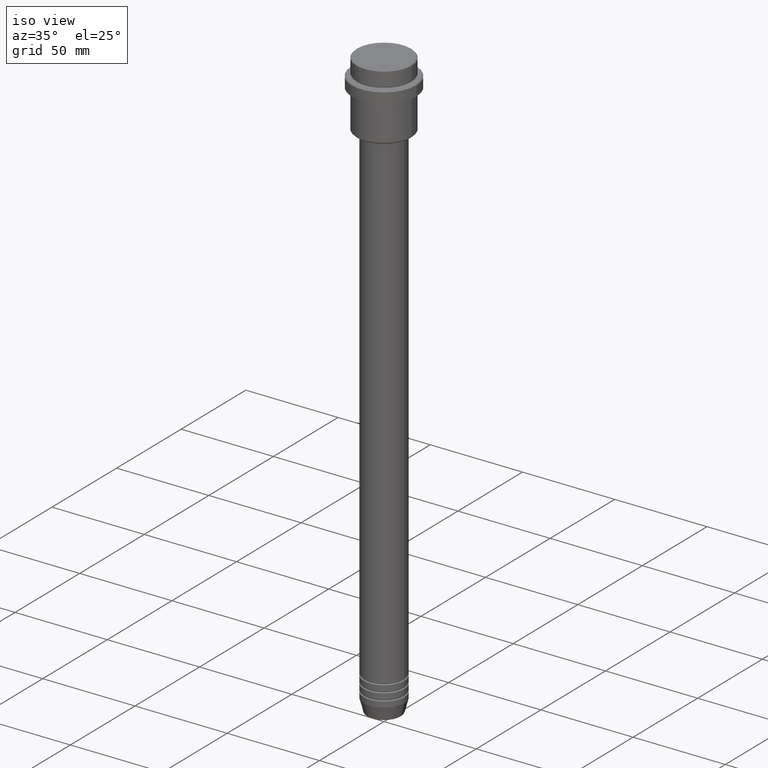
[diagram: clean part render]
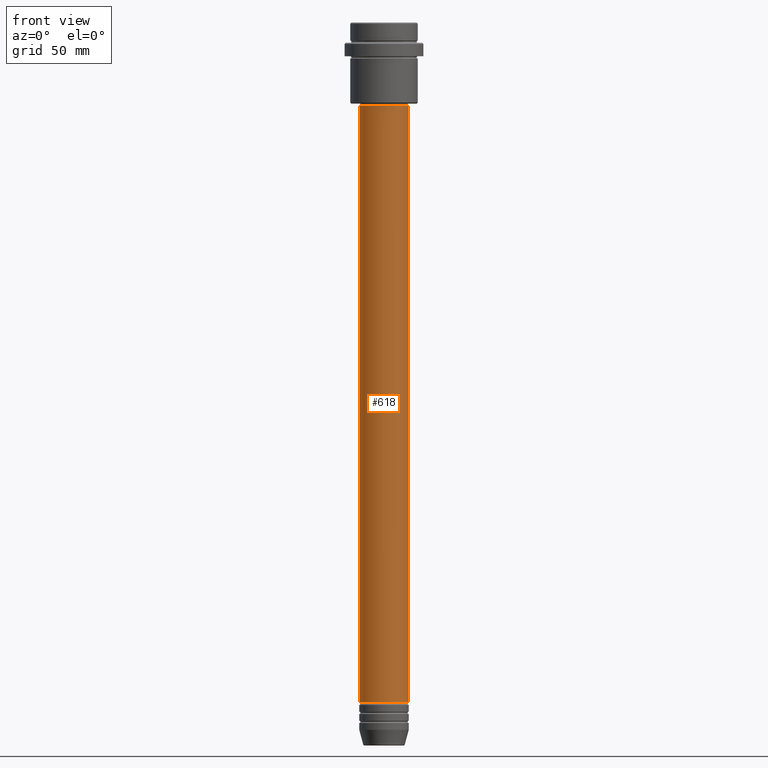
[diagram: tour spotlight — one face highlighted and labeled with its STEP entity id]
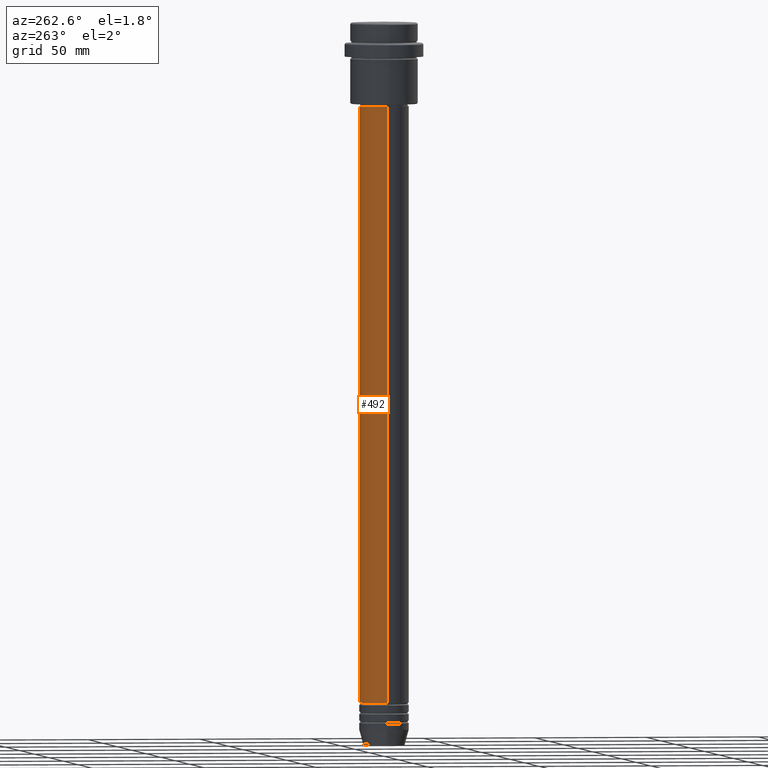
[diagram: tour spotlight — one face highlighted and labeled with its STEP entity id]
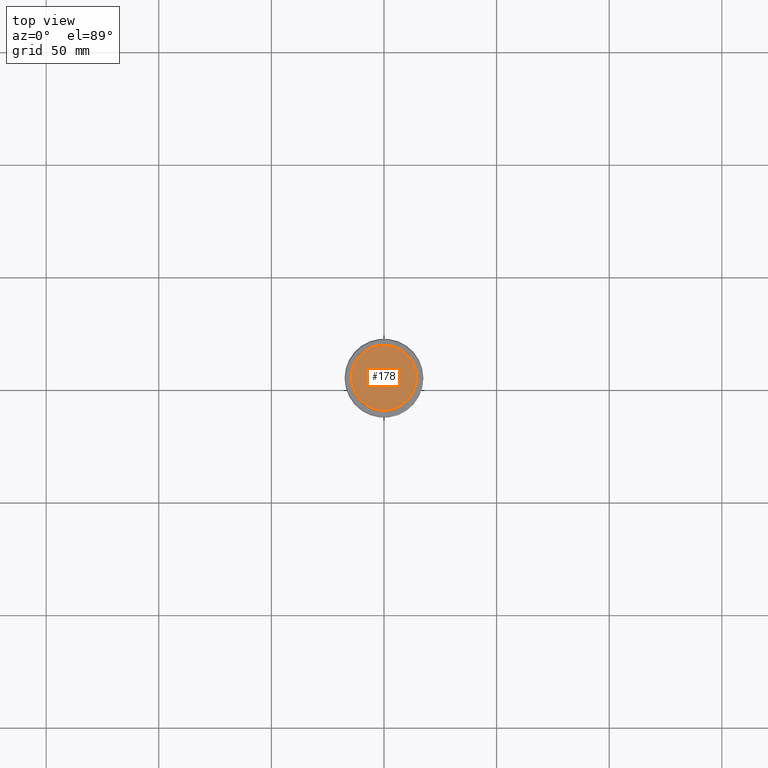
[diagram: tour spotlight — one face highlighted and labeled with its STEP entity id]
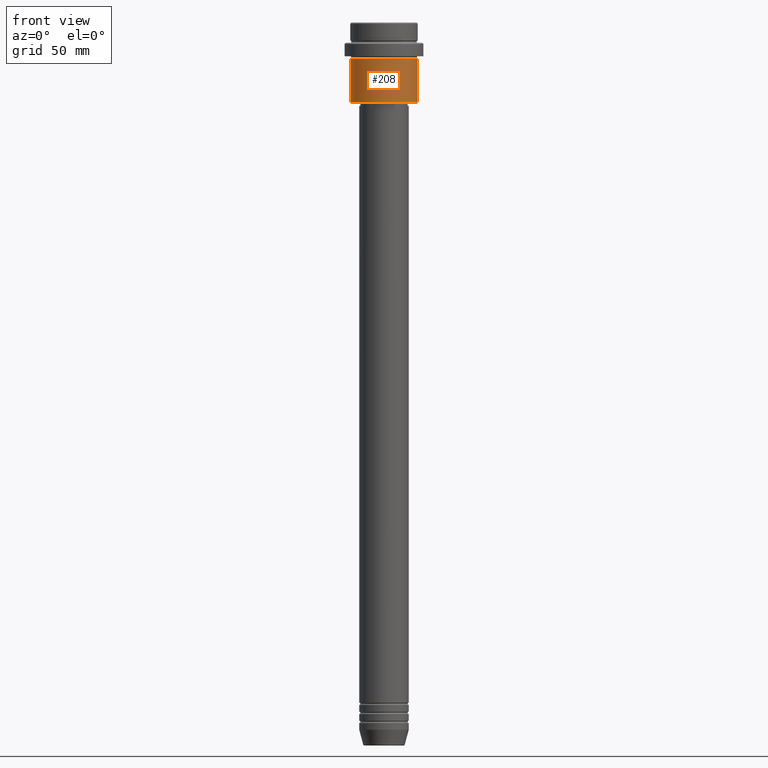
[diagram: tour spotlight — one face highlighted and labeled with its STEP entity id]
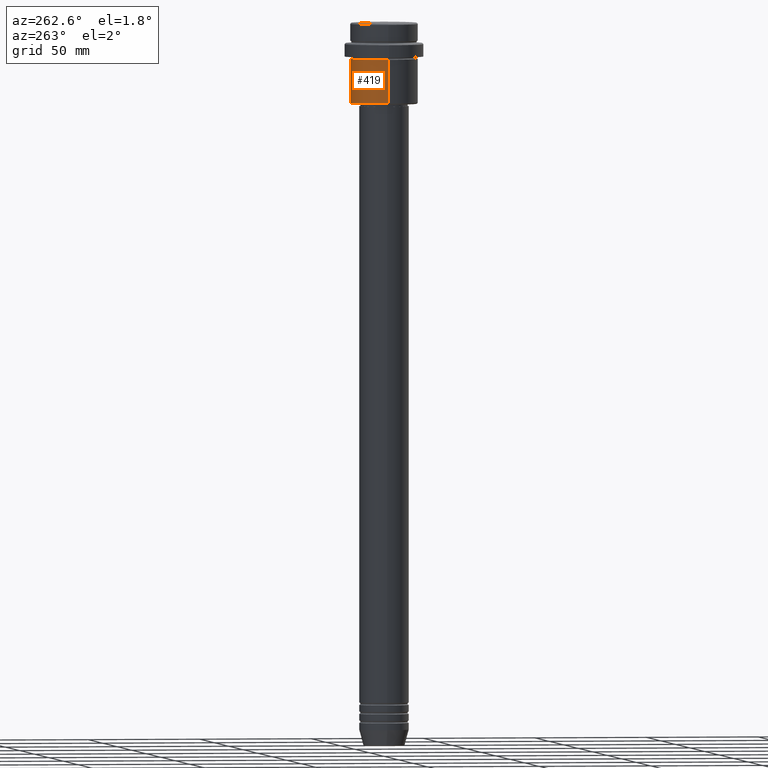
[diagram: tour spotlight — one face highlighted and labeled with its STEP entity id]
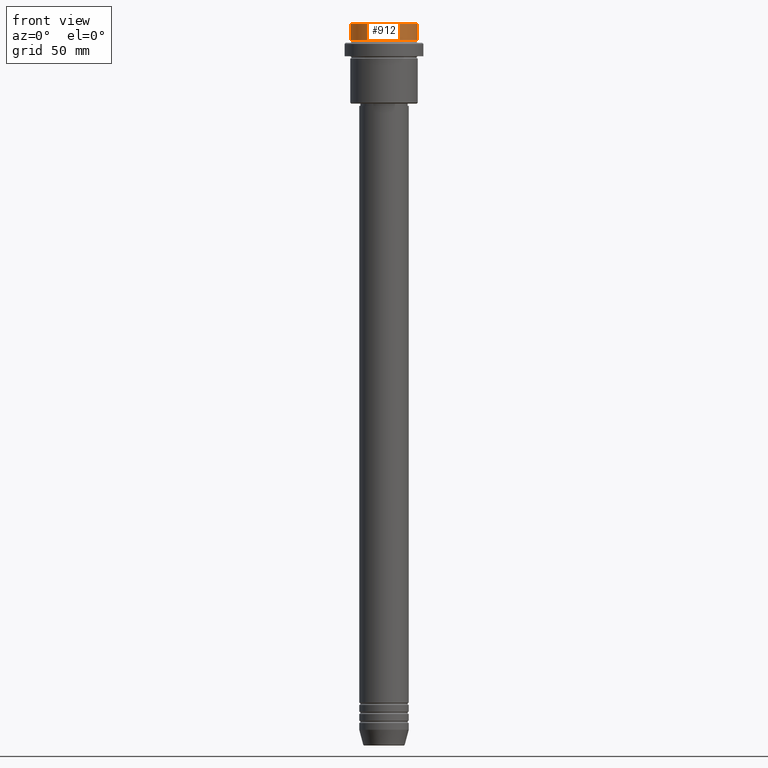
[diagram: tour spotlight — one face highlighted and labeled with its STEP entity id]
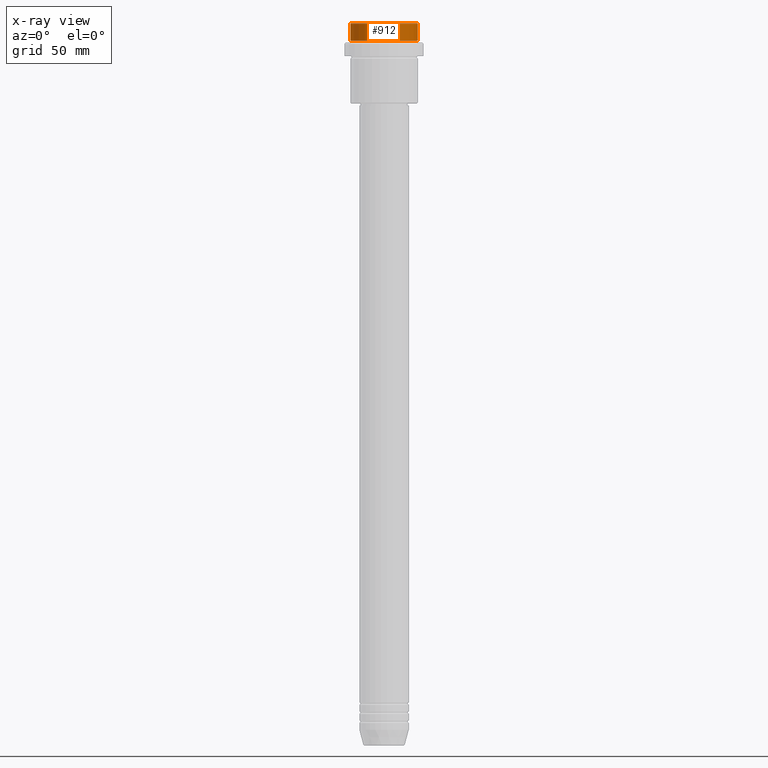
[diagram: x-ray of the same camera — body ghosted, this tour face saturated]
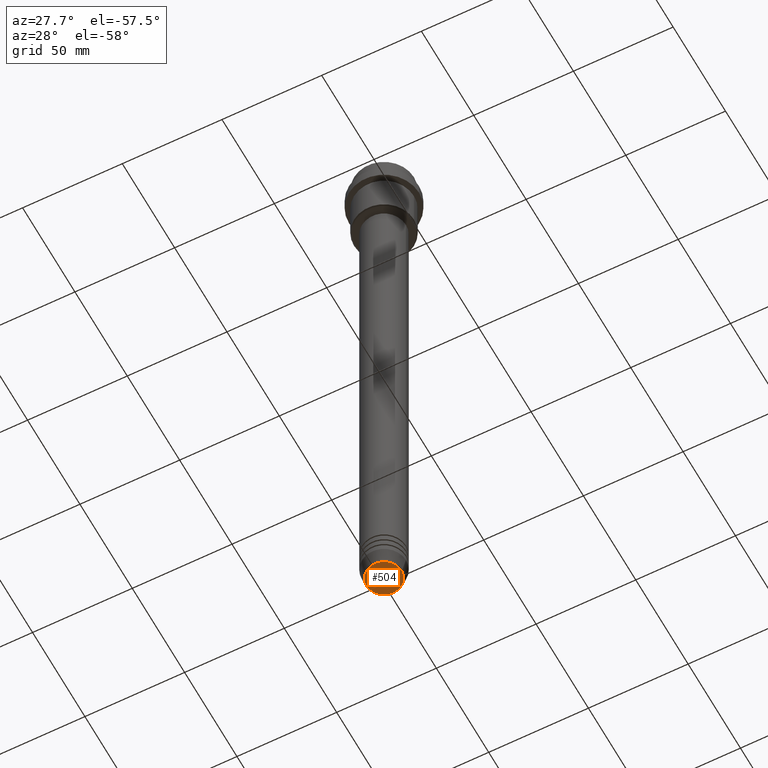
[diagram: tour spotlight — one face highlighted and labeled with its STEP entity id]
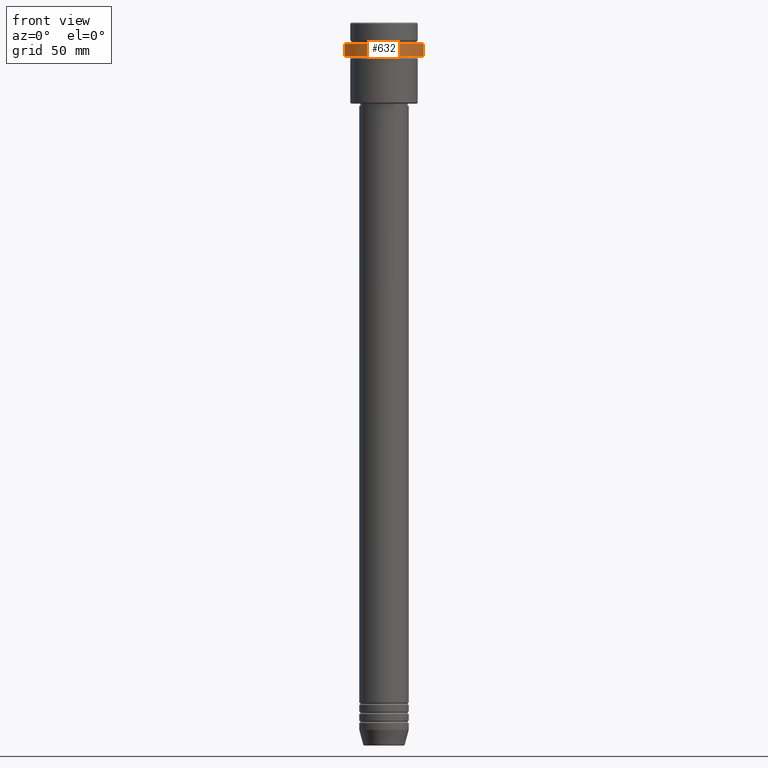
[diagram: tour spotlight — one face highlighted and labeled with its STEP entity id]
A machine part: a face-by-face anatomy tour. The part has 52 B-rep faces; the first image is the clean iso view, then the 8 largest visible faces are spotlighted one at a time (largest first), each with its STEP entity span.

Face 1 — front view, entity #618. In plain terms, the highlighted cylindrical surface (edge-blend (fillet) strip) has radius 11 mm, axis along (-0, -0, 1).
Definition (entity closure, byte-faithful):
#84 = DIRECTION ( 'NONE',  ( -0.000000000000000000, -0.000000000000000000, 1.000000000000000000 ) ) ;
#112 = EDGE_LOOP ( 'NONE', ( #187, #720, #445, #126 ) ) ;
#115 = DIRECTION ( 'NONE',  ( -0.000000000000000000, -0.000000000000000000, 1.000000000000000000 ) ) ;
#126 = ORIENTED_EDGE ( 'NONE', *, *, #1036, .F. ) ;
#144 = CARTESIAN_POINT ( 'NONE',  ( -11.00000000000000000, 1.347111479062088405E-15, -301.9999999999998863 ) ) ;
#170 = LINE ( 'NONE', #256, #266 ) ;
#187 = ORIENTED_EDGE ( 'NONE', *, *, #1356, .F. ) ;
#210 = CARTESIAN_POINT ( 'NONE',  ( 11.00000000000000000, 0.000000000000000000, -301.9999999999998863 ) ) ;
#213 = CARTESIAN_POINT ( 'NONE',  ( 10.99999999999999822, 0.000000000000000000, -37.00000000000000711 ) ) ;
#237 = CARTESIAN_POINT ( 'NONE',  ( 0.000000000000000000, 0.000000000000000000, 0.000000000000000000 ) ) ;
#243 = CYLINDRICAL_SURFACE ( 'NONE', #1208, 11.00000000000000000 ) ;
#256 = CARTESIAN_POINT ( 'NONE',  ( 11.00000000000000000, 0.000000000000000000, 0.000000000000000000 ) ) ;
#266 = VECTOR ( 'NONE', #1365, 1000.000000000000000 ) ;
#300 = VERTEX_POINT ( 'NONE', #144 ) ;
#316 = CARTESIAN_POINT ( 'NONE',  ( 0.000000000000000000, 0.000000000000000000, -301.9999999999998863 ) ) ;
#339 = FACE_OUTER_BOUND ( 'NONE', #112, .T. ) ;
#409 = CARTESIAN_POINT ( 'NONE',  ( -10.99999999999999822, 1.347111479062088207E-15, -37.00000000000000711 ) ) ;
#445 = ORIENTED_EDGE ( 'NONE', *, *, #1201, .T. ) ;
#507 = VERTEX_POINT ( 'NONE', #213 ) ;
#535 = VERTEX_POINT ( 'NONE', #409 ) ;
#548 = EDGE_CURVE ( 'NONE', #300, #1341, #1165, .T. ) ;
#613 = AXIS2_PLACEMENT_3D ( 'NONE', #1119, #1212, #792 ) ;
#618 = ADVANCED_FACE ( 'NONE', ( #339 ), #243, .T. ) ;
#682 = AXIS2_PLACEMENT_3D ( 'NONE', #316, #758, #884 ) ;
#720 = ORIENTED_EDGE ( 'NONE', *, *, #548, .T. ) ;
#738 = CARTESIAN_POINT ( 'NONE',  ( -11.00000000000000000, 1.347111479062088405E-15, 0.000000000000000000 ) ) ;
#758 = DIRECTION ( 'NONE',  ( -0.000000000000000000, -0.000000000000000000, 1.000000000000000000 ) ) ;
#792 = DIRECTION ( 'NONE',  ( 1.000000000000000000, 0.000000000000000000, 0.000000000000000000 ) ) ;
#884 = DIRECTION ( 'NONE',  ( 1.000000000000000000, 0.000000000000000000, 0.000000000000000000 ) ) ;
#1009 = VECTOR ( 'NONE', #84, 1000.000000000000000 ) ;
#1036 = EDGE_CURVE ( 'NONE', #535, #507, #1072, .T. ) ;
#1072 = CIRCLE ( 'NONE', #613, 10.99999999999999822 ) ;
#1119 = CARTESIAN_POINT ( 'NONE',  ( 0.000000000000000000, 0.000000000000000000, -37.00000000000000711 ) ) ;
#1165 = CIRCLE ( 'NONE', #682, 11.00000000000000000 ) ;
#1201 = EDGE_CURVE ( 'NONE', #1341, #507, #170, .T. ) ;
#1208 = AXIS2_PLACEMENT_3D ( 'NONE', #237, #115, #1354 ) ;
#1212 = DIRECTION ( 'NONE',  ( -0.000000000000000000, -0.000000000000000000, 1.000000000000000000 ) ) ;
#1341 = VERTEX_POINT ( 'NONE', #210 ) ;
#1354 = DIRECTION ( 'NONE',  ( 1.000000000000000000, 0.000000000000000000, 0.000000000000000000 ) ) ;
#1356 = EDGE_CURVE ( 'NONE', #300, #535, #1400, .T. ) ;
#1365 = DIRECTION ( 'NONE',  ( -0.000000000000000000, -0.000000000000000000, 1.000000000000000000 ) ) ;
#1400 = LINE ( 'NONE', #738, #1009 ) ;

Face 2 — auxiliary view, entity #492. In plain terms, the highlighted cylindrical surface (edge-blend (fillet) strip) has radius 11 mm, axis along (-0, -0, 1).
Definition (entity closure, byte-faithful):
#6 = CARTESIAN_POINT ( 'NONE',  ( 0.000000000000000000, 0.000000000000000000, 0.000000000000000000 ) ) ;
#8 = DIRECTION ( 'NONE',  ( 1.000000000000000000, 0.000000000000000000, 0.000000000000000000 ) ) ;
#24 = EDGE_LOOP ( 'NONE', ( #976, #883, #587, #1101 ) ) ;
#52 = DIRECTION ( 'NONE',  ( -0.000000000000000000, -0.000000000000000000, 1.000000000000000000 ) ) ;
#66 = AXIS2_PLACEMENT_3D ( 'NONE', #6, #191, #863 ) ;
#74 = EDGE_CURVE ( 'NONE', #1341, #300, #749, .T. ) ;
#84 = DIRECTION ( 'NONE',  ( -0.000000000000000000, -0.000000000000000000, 1.000000000000000000 ) ) ;
#144 = CARTESIAN_POINT ( 'NONE',  ( -11.00000000000000000, 1.347111479062088405E-15, -301.9999999999998863 ) ) ;
#170 = LINE ( 'NONE', #256, #266 ) ;
#176 = CIRCLE ( 'NONE', #776, 10.99999999999999822 ) ;
#191 = DIRECTION ( 'NONE',  ( -0.000000000000000000, -0.000000000000000000, 1.000000000000000000 ) ) ;
#210 = CARTESIAN_POINT ( 'NONE',  ( 11.00000000000000000, 0.000000000000000000, -301.9999999999998863 ) ) ;
#213 = CARTESIAN_POINT ( 'NONE',  ( 10.99999999999999822, 0.000000000000000000, -37.00000000000000711 ) ) ;
#256 = CARTESIAN_POINT ( 'NONE',  ( 11.00000000000000000, 0.000000000000000000, 0.000000000000000000 ) ) ;
#266 = VECTOR ( 'NONE', #1365, 1000.000000000000000 ) ;
#300 = VERTEX_POINT ( 'NONE', #144 ) ;
#308 = DIRECTION ( 'NONE',  ( -0.000000000000000000, -0.000000000000000000, 1.000000000000000000 ) ) ;
#363 = EDGE_CURVE ( 'NONE', #507, #535, #176, .T. ) ;
#409 = CARTESIAN_POINT ( 'NONE',  ( -10.99999999999999822, 1.347111479062088207E-15, -37.00000000000000711 ) ) ;
#492 = ADVANCED_FACE ( 'NONE', ( #877 ), #1080, .T. ) ;
#496 = AXIS2_PLACEMENT_3D ( 'NONE', #1186, #308, #8 ) ;
#507 = VERTEX_POINT ( 'NONE', #213 ) ;
#535 = VERTEX_POINT ( 'NONE', #409 ) ;
#587 = ORIENTED_EDGE ( 'NONE', *, *, #363, .F. ) ;
#738 = CARTESIAN_POINT ( 'NONE',  ( -11.00000000000000000, 1.347111479062088405E-15, 0.000000000000000000 ) ) ;
#749 = CIRCLE ( 'NONE', #496, 11.00000000000000000 ) ;
#776 = AXIS2_PLACEMENT_3D ( 'NONE', #1269, #52, #1147 ) ;
#863 = DIRECTION ( 'NONE',  ( 1.000000000000000000, 0.000000000000000000, 0.000000000000000000 ) ) ;
#877 = FACE_OUTER_BOUND ( 'NONE', #24, .T. ) ;
#883 = ORIENTED_EDGE ( 'NONE', *, *, #1356, .T. ) ;
#976 = ORIENTED_EDGE ( 'NONE', *, *, #74, .T. ) ;
#1009 = VECTOR ( 'NONE', #84, 1000.000000000000000 ) ;
#1080 = CYLINDRICAL_SURFACE ( 'NONE', #66, 11.00000000000000000 ) ;
#1101 = ORIENTED_EDGE ( 'NONE', *, *, #1201, .F. ) ;
#1147 = DIRECTION ( 'NONE',  ( 1.000000000000000000, 0.000000000000000000, 0.000000000000000000 ) ) ;
#1186 = CARTESIAN_POINT ( 'NONE',  ( 0.000000000000000000, 0.000000000000000000, -301.9999999999998863 ) ) ;
#1201 = EDGE_CURVE ( 'NONE', #1341, #507, #170, .T. ) ;
#1269 = CARTESIAN_POINT ( 'NONE',  ( 0.000000000000000000, 0.000000000000000000, -37.00000000000000711 ) ) ;
#1341 = VERTEX_POINT ( 'NONE', #210 ) ;
#1356 = EDGE_CURVE ( 'NONE', #300, #535, #1400, .T. ) ;
#1365 = DIRECTION ( 'NONE',  ( -0.000000000000000000, -0.000000000000000000, 1.000000000000000000 ) ) ;
#1400 = LINE ( 'NONE', #738, #1009 ) ;

Face 3 — top view, entity #178. In plain terms, the highlighted planar face has unit normal (0, -0, 1).
Definition (entity closure, byte-faithful):
#72 = ORIENTED_EDGE ( 'NONE', *, *, #1050, .T. ) ;
#122 = FACE_OUTER_BOUND ( 'NONE', #874, .T. ) ;
#125 = DIRECTION ( 'NONE',  ( -0.000000000000000000, -0.000000000000000000, 1.000000000000000000 ) ) ;
#131 = CARTESIAN_POINT ( 'NONE',  ( 0.000000000000000000, 0.000000000000000000, 0.000000000000000000 ) ) ;
#135 = CARTESIAN_POINT ( 'NONE',  ( 0.000000000000000000, 0.000000000000000000, 0.000000000000000000 ) ) ;
#178 = ADVANCED_FACE ( 'NONE', ( #122 ), #1137, .T. ) ;
#474 = CIRCLE ( 'NONE', #1006, 14.49999999999995559 ) ;
#586 = DIRECTION ( 'NONE',  ( 1.000000000000000000, 0.000000000000000000, 0.000000000000000000 ) ) ;
#627 = CARTESIAN_POINT ( 'NONE',  ( -14.49999999999995559, 0.000000000000000000, 0.000000000000000000 ) ) ;
#635 = VERTEX_POINT ( 'NONE', #1233 ) ;
#798 = AXIS2_PLACEMENT_3D ( 'NONE', #131, #892, #586 ) ;
#859 = ORIENTED_EDGE ( 'NONE', *, *, #1067, .T. ) ;
#874 = EDGE_LOOP ( 'NONE', ( #859, #72 ) ) ;
#892 = DIRECTION ( 'NONE',  ( 0.000000000000000000, -0.000000000000000000, 1.000000000000000000 ) ) ;
#902 = VERTEX_POINT ( 'NONE', #627 ) ;
#909 = DIRECTION ( 'NONE',  ( -0.000000000000000000, -0.000000000000000000, 1.000000000000000000 ) ) ;
#1006 = AXIS2_PLACEMENT_3D ( 'NONE', #135, #125, #1018 ) ;
#1018 = DIRECTION ( 'NONE',  ( 1.000000000000000000, 0.000000000000000000, 0.000000000000000000 ) ) ;
#1050 = EDGE_CURVE ( 'NONE', #635, #902, #474, .T. ) ;
#1067 = EDGE_CURVE ( 'NONE', #902, #635, #1413, .T. ) ;
#1137 = PLANE ( 'NONE',  #798 ) ;
#1139 = AXIS2_PLACEMENT_3D ( 'NONE', #1202, #909, #1334 ) ;
#1202 = CARTESIAN_POINT ( 'NONE',  ( 0.000000000000000000, 0.000000000000000000, 0.000000000000000000 ) ) ;
#1233 = CARTESIAN_POINT ( 'NONE',  ( 14.49999999999995559, 1.806354028742343041E-15, 0.000000000000000000 ) ) ;
#1334 = DIRECTION ( 'NONE',  ( 1.000000000000000000, 0.000000000000000000, 0.000000000000000000 ) ) ;
#1413 = CIRCLE ( 'NONE', #1139, 14.49999999999995559 ) ;

Face 4 — front view, entity #208. In plain terms, the highlighted cylindrical surface (edge-blend (fillet) strip) has radius 15 mm, axis along (-0, -0, 1).
Definition (entity closure, byte-faithful):
#22 = CYLINDRICAL_SURFACE ( 'NONE', #195, 15.00000000000000000 ) ;
#76 = VERTEX_POINT ( 'NONE', #974 ) ;
#93 = DIRECTION ( 'NONE',  ( -0.000000000000000000, -0.000000000000000000, 1.000000000000000000 ) ) ;
#105 = CARTESIAN_POINT ( 'NONE',  ( -15.00000000000000000, 1.836970198721029589E-15, 0.000000000000000000 ) ) ;
#164 = VERTEX_POINT ( 'NONE', #467 ) ;
#195 = AXIS2_PLACEMENT_3D ( 'NONE', #1331, #922, #1122 ) ;
#204 = CARTESIAN_POINT ( 'NONE',  ( -15.00000000000000355, 1.836970198721029983E-15, -16.00000000000000000 ) ) ;
#208 = ADVANCED_FACE ( 'NONE', ( #348 ), #22, .T. ) ;
#278 = DIRECTION ( 'NONE',  ( -0.000000000000000000, -0.000000000000000000, 1.000000000000000000 ) ) ;
#348 = FACE_OUTER_BOUND ( 'NONE', #432, .T. ) ;
#432 = EDGE_LOOP ( 'NONE', ( #964, #986, #667, #1083 ) ) ;
#433 = DIRECTION ( 'NONE',  ( 1.000000000000000000, 0.000000000000000000, 0.000000000000000000 ) ) ;
#467 = CARTESIAN_POINT ( 'NONE',  ( 15.00000000000000178, 0.000000000000000000, -16.00000000000000000 ) ) ;
#515 = LINE ( 'NONE', #105, #731 ) ;
#545 = VECTOR ( 'NONE', #684, 1000.000000000000000 ) ;
#546 = DIRECTION ( 'NONE',  ( -0.000000000000000000, -0.000000000000000000, 1.000000000000000000 ) ) ;
#555 = VERTEX_POINT ( 'NONE', #204 ) ;
#564 = EDGE_CURVE ( 'NONE', #1329, #164, #1403, .T. ) ;
#630 = CIRCLE ( 'NONE', #1114, 15.00000000000000000 ) ;
#636 = AXIS2_PLACEMENT_3D ( 'NONE', #746, #93, #433 ) ;
#651 = CIRCLE ( 'NONE', #636, 15.00000000000000178 ) ;
#667 = ORIENTED_EDGE ( 'NONE', *, *, #564, .T. ) ;
#684 = DIRECTION ( 'NONE',  ( -0.000000000000000000, -0.000000000000000000, 1.000000000000000000 ) ) ;
#731 = VECTOR ( 'NONE', #546, 1000.000000000000000 ) ;
#746 = CARTESIAN_POINT ( 'NONE',  ( 0.000000000000000000, 0.000000000000000000, -16.00000000000000000 ) ) ;
#756 = CARTESIAN_POINT ( 'NONE',  ( 15.00000000000000000, 0.000000000000000000, -35.50000000000001421 ) ) ;
#841 = EDGE_CURVE ( 'NONE', #76, #555, #515, .T. ) ;
#886 = EDGE_CURVE ( 'NONE', #555, #164, #651, .T. ) ;
#922 = DIRECTION ( 'NONE',  ( -0.000000000000000000, -0.000000000000000000, 1.000000000000000000 ) ) ;
#931 = DIRECTION ( 'NONE',  ( -1.000000000000000000, 0.000000000000000000, 0.000000000000000000 ) ) ;
#964 = ORIENTED_EDGE ( 'NONE', *, *, #841, .F. ) ;
#974 = CARTESIAN_POINT ( 'NONE',  ( -15.00000000000000000, 1.836970198721029589E-15, -35.50000000000001421 ) ) ;
#986 = ORIENTED_EDGE ( 'NONE', *, *, #1155, .T. ) ;
#1083 = ORIENTED_EDGE ( 'NONE', *, *, #886, .F. ) ;
#1114 = AXIS2_PLACEMENT_3D ( 'NONE', #1267, #278, #931 ) ;
#1122 = DIRECTION ( 'NONE',  ( 1.000000000000000000, 0.000000000000000000, 0.000000000000000000 ) ) ;
#1155 = EDGE_CURVE ( 'NONE', #76, #1329, #630, .T. ) ;
#1223 = CARTESIAN_POINT ( 'NONE',  ( 15.00000000000000000, 0.000000000000000000, 0.000000000000000000 ) ) ;
#1267 = CARTESIAN_POINT ( 'NONE',  ( 0.000000000000000000, 0.000000000000000000, -35.50000000000001421 ) ) ;
#1329 = VERTEX_POINT ( 'NONE', #756 ) ;
#1331 = CARTESIAN_POINT ( 'NONE',  ( 0.000000000000000000, 0.000000000000000000, 0.000000000000000000 ) ) ;
#1403 = LINE ( 'NONE', #1223, #545 ) ;

Face 5 — auxiliary view, entity #419. In plain terms, the highlighted cylindrical surface (edge-blend (fillet) strip) has radius 15 mm, axis along (-0, -0, 1).
Definition (entity closure, byte-faithful):
#15 = ORIENTED_EDGE ( 'NONE', *, *, #290, .F. ) ;
#20 = AXIS2_PLACEMENT_3D ( 'NONE', #783, #581, #691 ) ;
#75 = CYLINDRICAL_SURFACE ( 'NONE', #1414, 15.00000000000000000 ) ;
#76 = VERTEX_POINT ( 'NONE', #974 ) ;
#105 = CARTESIAN_POINT ( 'NONE',  ( -15.00000000000000000, 1.836970198721029589E-15, 0.000000000000000000 ) ) ;
#164 = VERTEX_POINT ( 'NONE', #467 ) ;
#167 = DIRECTION ( 'NONE',  ( -0.000000000000000000, -0.000000000000000000, 1.000000000000000000 ) ) ;
#204 = CARTESIAN_POINT ( 'NONE',  ( -15.00000000000000355, 1.836970198721029983E-15, -16.00000000000000000 ) ) ;
#289 = ORIENTED_EDGE ( 'NONE', *, *, #1318, .T. ) ;
#290 = EDGE_CURVE ( 'NONE', #164, #555, #1030, .T. ) ;
#406 = DIRECTION ( 'NONE',  ( -1.000000000000000000, 0.000000000000000000, 0.000000000000000000 ) ) ;
#419 = ADVANCED_FACE ( 'NONE', ( #1048 ), #75, .T. ) ;
#467 = CARTESIAN_POINT ( 'NONE',  ( 15.00000000000000178, 0.000000000000000000, -16.00000000000000000 ) ) ;
#508 = CARTESIAN_POINT ( 'NONE',  ( 0.000000000000000000, 0.000000000000000000, -35.50000000000001421 ) ) ;
#515 = LINE ( 'NONE', #105, #731 ) ;
#543 = AXIS2_PLACEMENT_3D ( 'NONE', #508, #1391, #406 ) ;
#545 = VECTOR ( 'NONE', #684, 1000.000000000000000 ) ;
#546 = DIRECTION ( 'NONE',  ( -0.000000000000000000, -0.000000000000000000, 1.000000000000000000 ) ) ;
#555 = VERTEX_POINT ( 'NONE', #204 ) ;
#564 = EDGE_CURVE ( 'NONE', #1329, #164, #1403, .T. ) ;
#581 = DIRECTION ( 'NONE',  ( -0.000000000000000000, -0.000000000000000000, 1.000000000000000000 ) ) ;
#684 = DIRECTION ( 'NONE',  ( -0.000000000000000000, -0.000000000000000000, 1.000000000000000000 ) ) ;
#691 = DIRECTION ( 'NONE',  ( 1.000000000000000000, 0.000000000000000000, 0.000000000000000000 ) ) ;
#698 = ORIENTED_EDGE ( 'NONE', *, *, #841, .T. ) ;
#731 = VECTOR ( 'NONE', #546, 1000.000000000000000 ) ;
#756 = CARTESIAN_POINT ( 'NONE',  ( 15.00000000000000000, 0.000000000000000000, -35.50000000000001421 ) ) ;
#783 = CARTESIAN_POINT ( 'NONE',  ( 0.000000000000000000, 0.000000000000000000, -16.00000000000000000 ) ) ;
#841 = EDGE_CURVE ( 'NONE', #76, #555, #515, .T. ) ;
#928 = CARTESIAN_POINT ( 'NONE',  ( 0.000000000000000000, 0.000000000000000000, 0.000000000000000000 ) ) ;
#932 = EDGE_LOOP ( 'NONE', ( #289, #698, #15, #1320 ) ) ;
#974 = CARTESIAN_POINT ( 'NONE',  ( -15.00000000000000000, 1.836970198721029589E-15, -35.50000000000001421 ) ) ;
#1030 = CIRCLE ( 'NONE', #20, 15.00000000000000178 ) ;
#1048 = FACE_OUTER_BOUND ( 'NONE', #932, .T. ) ;
#1052 = CIRCLE ( 'NONE', #543, 15.00000000000000000 ) ;
#1223 = CARTESIAN_POINT ( 'NONE',  ( 15.00000000000000000, 0.000000000000000000, 0.000000000000000000 ) ) ;
#1318 = EDGE_CURVE ( 'NONE', #1329, #76, #1052, .T. ) ;
#1320 = ORIENTED_EDGE ( 'NONE', *, *, #564, .F. ) ;
#1329 = VERTEX_POINT ( 'NONE', #756 ) ;
#1360 = DIRECTION ( 'NONE',  ( 1.000000000000000000, 0.000000000000000000, 0.000000000000000000 ) ) ;
#1391 = DIRECTION ( 'NONE',  ( -0.000000000000000000, -0.000000000000000000, 1.000000000000000000 ) ) ;
#1403 = LINE ( 'NONE', #1223, #545 ) ;
#1414 = AXIS2_PLACEMENT_3D ( 'NONE', #928, #167, #1360 ) ;

Face 6 — front view, entity #912. An x-ray twin of the same camera follows (body ghosted, this face saturated) — the face is partly hidden behind the body. In plain terms, the highlighted cylindrical surface (edge-blend (fillet) strip) has radius 15 mm, axis along (-0, -0, 1).
Definition (entity closure, byte-faithful):
#55 = VERTEX_POINT ( 'NONE', #1087 ) ;
#67 = DIRECTION ( 'NONE',  ( 1.000000000000000000, 0.000000000000000000, 0.000000000000000000 ) ) ;
#87 = DIRECTION ( 'NONE',  ( 1.000000000000000000, 0.000000000000000000, 0.000000000000000000 ) ) ;
#110 = AXIS2_PLACEMENT_3D ( 'NONE', #184, #757, #203 ) ;
#142 = ORIENTED_EDGE ( 'NONE', *, *, #954, .T. ) ;
#163 = LINE ( 'NONE', #604, #678 ) ;
#184 = CARTESIAN_POINT ( 'NONE',  ( 0.000000000000000000, 0.000000000000000000, 0.000000000000000000 ) ) ;
#203 = DIRECTION ( 'NONE',  ( 1.000000000000000000, 0.000000000000000000, 0.000000000000000000 ) ) ;
#223 = VECTOR ( 'NONE', #1314, 1000.000000000000000 ) ;
#387 = AXIS2_PLACEMENT_3D ( 'NONE', #876, #1307, #87 ) ;
#416 = VERTEX_POINT ( 'NONE', #820 ) ;
#438 = EDGE_CURVE ( 'NONE', #1333, #1173, #973, .T. ) ;
#439 = ORIENTED_EDGE ( 'NONE', *, *, #1148, .T. ) ;
#588 = DIRECTION ( 'NONE',  ( -0.000000000000000000, -0.000000000000000000, 1.000000000000000000 ) ) ;
#604 = CARTESIAN_POINT ( 'NONE',  ( 15.00000000000000000, 0.000000000000000000, 0.000000000000000000 ) ) ;
#654 = AXIS2_PLACEMENT_3D ( 'NONE', #696, #588, #67 ) ;
#678 = VECTOR ( 'NONE', #1045, 1000.000000000000000 ) ;
#696 = CARTESIAN_POINT ( 'NONE',  ( 0.000000000000000000, 0.000000000000000000, -7.999999999999998224 ) ) ;
#757 = DIRECTION ( 'NONE',  ( -0.000000000000000000, -0.000000000000000000, 1.000000000000000000 ) ) ;
#820 = CARTESIAN_POINT ( 'NONE',  ( 15.00000000000000000, 0.000000000000000000, -7.999999999999998224 ) ) ;
#843 = CARTESIAN_POINT ( 'NONE',  ( -15.00000000000000000, 1.836970198721029589E-15, -7.999999999999998224 ) ) ;
#845 = CIRCLE ( 'NONE', #654, 15.00000000000000000 ) ;
#868 = CARTESIAN_POINT ( 'NONE',  ( -15.00000000000000000, 1.836970198721029589E-15, 0.000000000000000000 ) ) ;
#876 = CARTESIAN_POINT ( 'NONE',  ( 0.000000000000000000, 0.000000000000000000, -0.5000000000000662803 ) ) ;
#912 = ADVANCED_FACE ( 'NONE', ( #1171 ), #972, .T. ) ;
#918 = CARTESIAN_POINT ( 'NONE',  ( -15.00000000000000000, 1.836970198721029589E-15, -0.5000000000000662803 ) ) ;
#954 = EDGE_CURVE ( 'NONE', #55, #1173, #1278, .T. ) ;
#972 = CYLINDRICAL_SURFACE ( 'NONE', #110, 15.00000000000000000 ) ;
#973 = LINE ( 'NONE', #868, #223 ) ;
#1045 = DIRECTION ( 'NONE',  ( -0.000000000000000000, -0.000000000000000000, 1.000000000000000000 ) ) ;
#1058 = ORIENTED_EDGE ( 'NONE', *, *, #438, .F. ) ;
#1087 = CARTESIAN_POINT ( 'NONE',  ( 15.00000000000000000, 0.000000000000000000, -0.5000000000000662803 ) ) ;
#1116 = ORIENTED_EDGE ( 'NONE', *, *, #1292, .T. ) ;
#1148 = EDGE_CURVE ( 'NONE', #1333, #416, #845, .T. ) ;
#1171 = FACE_OUTER_BOUND ( 'NONE', #1262, .T. ) ;
#1173 = VERTEX_POINT ( 'NONE', #918 ) ;
#1262 = EDGE_LOOP ( 'NONE', ( #1058, #439, #1116, #142 ) ) ;
#1278 = CIRCLE ( 'NONE', #387, 15.00000000000000000 ) ;
#1292 = EDGE_CURVE ( 'NONE', #416, #55, #163, .T. ) ;
#1307 = DIRECTION ( 'NONE',  ( 0.000000000000000000, 0.000000000000000000, -1.000000000000000000 ) ) ;
#1314 = DIRECTION ( 'NONE',  ( -0.000000000000000000, -0.000000000000000000, 1.000000000000000000 ) ) ;
#1333 = VERTEX_POINT ( 'NONE', #843 ) ;

Face 7 — auxiliary view, entity #504. In plain terms, the highlighted planar face has unit normal (0, -0, 1).
Definition (entity closure, byte-faithful):
#285 = DIRECTION ( 'NONE',  ( 0.000000000000000000, 0.000000000000000000, -1.000000000000000000 ) ) ;
#334 = CIRCLE ( 'NONE', #893, 8.740692158992656502 ) ;
#365 = CARTESIAN_POINT ( 'NONE',  ( 0.000000000000000000, 0.000000000000000000, -321.0000000000000000 ) ) ;
#370 = EDGE_LOOP ( 'NONE', ( #561, #1156 ) ) ;
#381 = DIRECTION ( 'NONE',  ( 1.000000000000000000, 0.000000000000000000, 0.000000000000000000 ) ) ;
#405 = AXIS2_PLACEMENT_3D ( 'NONE', #742, #1308, #1293 ) ;
#420 = PLANE ( 'NONE',  #405 ) ;
#458 = CARTESIAN_POINT ( 'NONE',  ( -8.740692158992656502, 1.099999016768739653E-15, -321.0000000000000000 ) ) ;
#477 = AXIS2_PLACEMENT_3D ( 'NONE', #505, #285, #381 ) ;
#504 = ADVANCED_FACE ( 'NONE', ( #628 ), #420, .F. ) ;
#505 = CARTESIAN_POINT ( 'NONE',  ( 0.000000000000000000, 0.000000000000000000, -321.0000000000000000 ) ) ;
#561 = ORIENTED_EDGE ( 'NONE', *, *, #1198, .T. ) ;
#571 = CIRCLE ( 'NONE', #477, 8.740692158992656502 ) ;
#628 = FACE_OUTER_BOUND ( 'NONE', #370, .T. ) ;
#707 = EDGE_CURVE ( 'NONE', #1043, #1335, #571, .T. ) ;
#742 = CARTESIAN_POINT ( 'NONE',  ( 0.000000000000000000, 0.000000000000000000, -321.0000000000000000 ) ) ;
#893 = AXIS2_PLACEMENT_3D ( 'NONE', #365, #1380, #1239 ) ;
#1043 = VERTEX_POINT ( 'NONE', #458 ) ;
#1156 = ORIENTED_EDGE ( 'NONE', *, *, #707, .T. ) ;
#1198 = EDGE_CURVE ( 'NONE', #1335, #1043, #334, .T. ) ;
#1239 = DIRECTION ( 'NONE',  ( 1.000000000000000000, 0.000000000000000000, 0.000000000000000000 ) ) ;
#1290 = CARTESIAN_POINT ( 'NONE',  ( 8.740692158992656502, 0.000000000000000000, -321.0000000000000000 ) ) ;
#1293 = DIRECTION ( 'NONE',  ( 1.000000000000000000, 0.000000000000000000, 0.000000000000000000 ) ) ;
#1308 = DIRECTION ( 'NONE',  ( 0.000000000000000000, -0.000000000000000000, 1.000000000000000000 ) ) ;
#1335 = VERTEX_POINT ( 'NONE', #1290 ) ;
#1380 = DIRECTION ( 'NONE',  ( 0.000000000000000000, 0.000000000000000000, -1.000000000000000000 ) ) ;

Face 8 — front view, entity #632. In plain terms, the highlighted cylindrical surface (partial cylindrical patch) has radius 17.5 mm, axis along (-0, -0, 1).
Definition (entity closure, byte-faithful):
#14 = DIRECTION ( 'NONE',  ( -0.000000000000000000, -0.000000000000000000, 1.000000000000000000 ) ) ;
#19 = FACE_OUTER_BOUND ( 'NONE', #1313, .T. ) ;
#47 = CIRCLE ( 'NONE', #340, 17.50000000000000000 ) ;
#98 = DIRECTION ( 'NONE',  ( 0.000000000000000000, 0.000000000000000000, -1.000000000000000000 ) ) ;
#101 = EDGE_CURVE ( 'NONE', #760, #522, #1288, .T. ) ;
#109 = CARTESIAN_POINT ( 'NONE',  ( -17.50000000000000000, 2.143131898507868248E-15, -9.500000000000000000 ) ) ;
#283 = ORIENTED_EDGE ( 'NONE', *, *, #854, .T. ) ;
#309 = ORIENTED_EDGE ( 'NONE', *, *, #101, .F. ) ;
#340 = AXIS2_PLACEMENT_3D ( 'NONE', #714, #610, #1264 ) ;
#367 = DIRECTION ( 'NONE',  ( -0.000000000000000000, -0.000000000000000000, 1.000000000000000000 ) ) ;
#418 = DIRECTION ( 'NONE',  ( 1.000000000000000000, 0.000000000000000000, 0.000000000000000000 ) ) ;
#423 = LINE ( 'NONE', #514, #917 ) ;
#471 = AXIS2_PLACEMENT_3D ( 'NONE', #638, #98, #418 ) ;
#501 = ORIENTED_EDGE ( 'NONE', *, *, #732, .T. ) ;
#514 = CARTESIAN_POINT ( 'NONE',  ( 17.50000000000000000, 0.000000000000000000, 0.000000000000000000 ) ) ;
#522 = VERTEX_POINT ( 'NONE', #109 ) ;
#540 = VECTOR ( 'NONE', #14, 1000.000000000000000 ) ;
#576 = VERTEX_POINT ( 'NONE', #662 ) ;
#593 = AXIS2_PLACEMENT_3D ( 'NONE', #1024, #367, #1342 ) ;
#603 = ORIENTED_EDGE ( 'NONE', *, *, #1337, .T. ) ;
#610 = DIRECTION ( 'NONE',  ( -0.000000000000000000, -0.000000000000000000, 1.000000000000000000 ) ) ;
#632 = ADVANCED_FACE ( 'NONE', ( #19 ), #802, .T. ) ;
#638 = CARTESIAN_POINT ( 'NONE',  ( 0.000000000000000000, 0.000000000000000000, -9.500000000000000000 ) ) ;
#652 = VERTEX_POINT ( 'NONE', #811 ) ;
#662 = CARTESIAN_POINT ( 'NONE',  ( 17.50000000000000000, 0.000000000000000000, -15.00000000000000000 ) ) ;
#714 = CARTESIAN_POINT ( 'NONE',  ( 0.000000000000000000, 0.000000000000000000, -15.00000000000000000 ) ) ;
#732 = EDGE_CURVE ( 'NONE', #760, #576, #47, .T. ) ;
#759 = CARTESIAN_POINT ( 'NONE',  ( -17.50000000000000000, 2.143131898507868248E-15, 0.000000000000000000 ) ) ;
#760 = VERTEX_POINT ( 'NONE', #839 ) ;
#802 = CYLINDRICAL_SURFACE ( 'NONE', #593, 17.50000000000000000 ) ;
#811 = CARTESIAN_POINT ( 'NONE',  ( 17.50000000000000000, 0.000000000000000000, -9.500000000000000000 ) ) ;
#839 = CARTESIAN_POINT ( 'NONE',  ( -17.50000000000000000, 2.143131898507868248E-15, -15.00000000000000000 ) ) ;
#854 = EDGE_CURVE ( 'NONE', #652, #522, #1057, .T. ) ;
#917 = VECTOR ( 'NONE', #1285, 1000.000000000000000 ) ;
#1024 = CARTESIAN_POINT ( 'NONE',  ( 0.000000000000000000, 0.000000000000000000, 0.000000000000000000 ) ) ;
#1057 = CIRCLE ( 'NONE', #471, 17.50000000000000000 ) ;
#1264 = DIRECTION ( 'NONE',  ( 1.000000000000000000, 0.000000000000000000, 0.000000000000000000 ) ) ;
#1285 = DIRECTION ( 'NONE',  ( -0.000000000000000000, -0.000000000000000000, 1.000000000000000000 ) ) ;
#1288 = LINE ( 'NONE', #759, #540 ) ;
#1313 = EDGE_LOOP ( 'NONE', ( #309, #501, #603, #283 ) ) ;
#1337 = EDGE_CURVE ( 'NONE', #576, #652, #423, .T. ) ;
#1342 = DIRECTION ( 'NONE',  ( 1.000000000000000000, 0.000000000000000000, 0.000000000000000000 ) ) ;